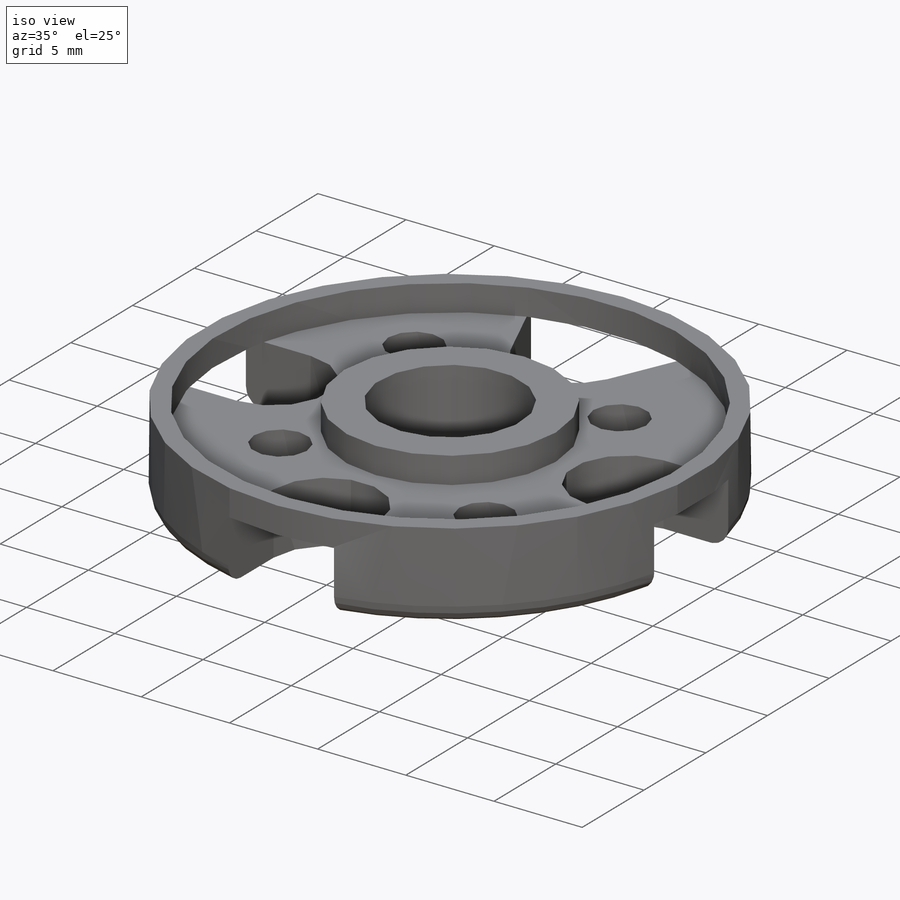
[diagram: iso view]
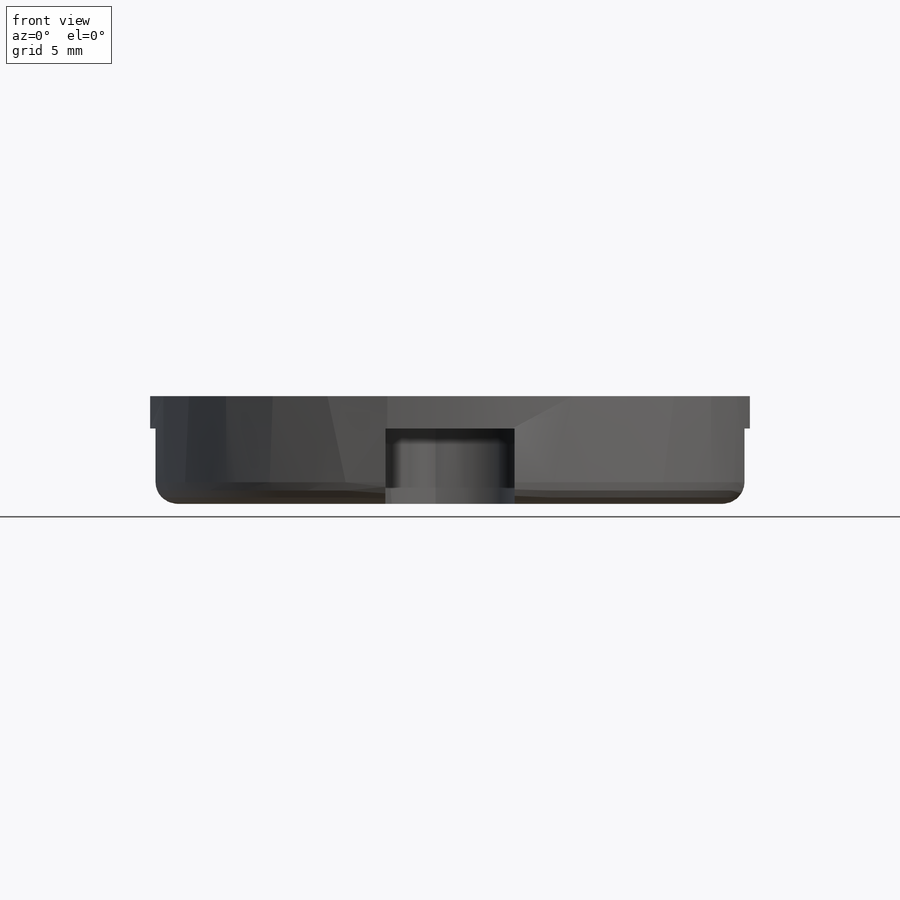
[diagram: front view]
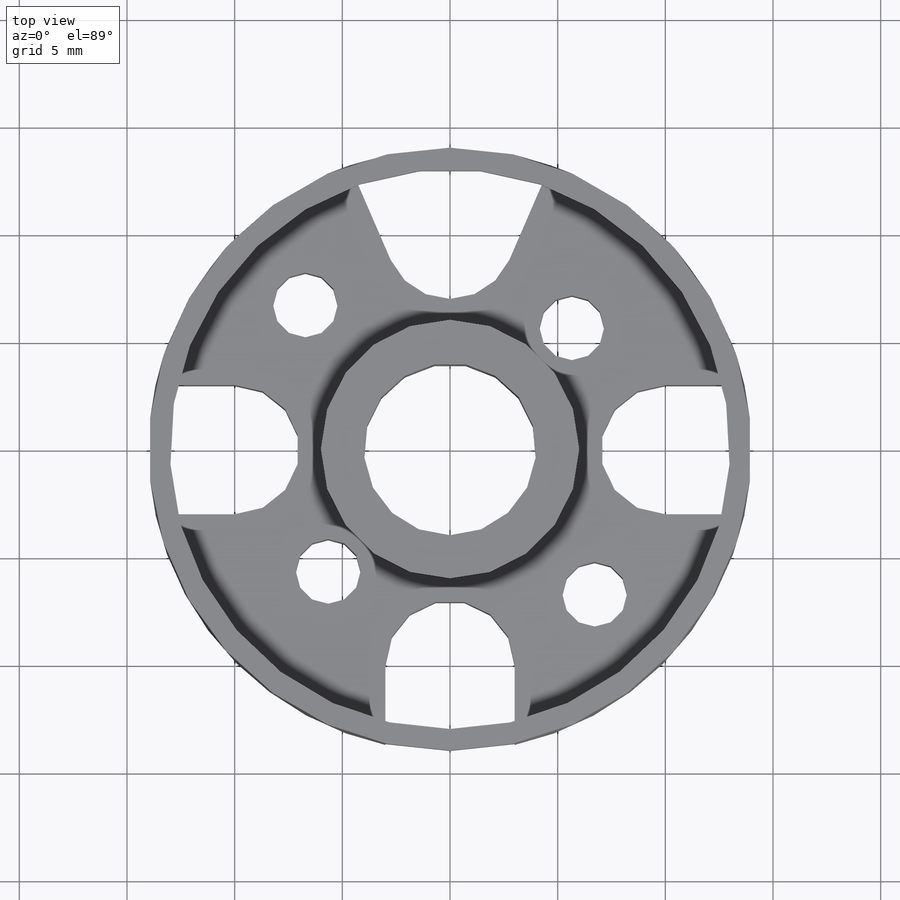
[diagram: top view]
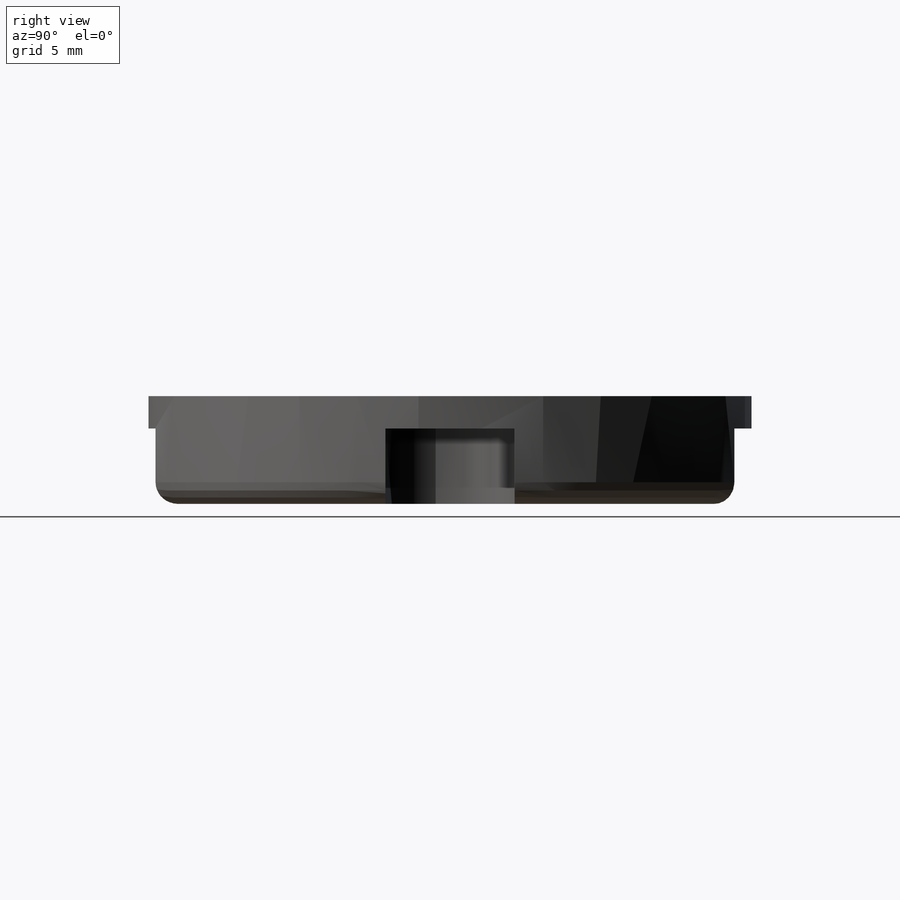
[diagram: right view]
SOLIDWORKS PART (.sldprt)
format: sldprt  version: not decoded by parser v0  size: 293,888 bytes
history: native  units: mm
features: sketch x7, cut_extrude x5, plane x3, extrude x2, material x1, fillet x1, pattern_circular x1 (+9 scaffold rows collapsed)
feature tree (29):
  scaffold x9  (default folders/planes/origin — collapsed)
  material  "Matériau <non spécifié>"
  plane  "XY"
  plane  "XZ"
  plane  "YZ"
  sketch  "Esquisse1"  dims[D1=28.0mm]
  extrude  "base brut"  Depth=5mm
  fillet  "Congé1"  Radius=1mm
  sketch  "Esquisse2"  dims[D1=1.0mm]
  cut_extrude  "creux interieur"  Depth=1.5mm
  sketch  "Esquisse3"  dims[D3=3.0mm D1=4.0mm D2=6.0mm]
  cut_extrude  "creusement exterieur"  [1 undecoded]
  pattern_circular  "Répétition circulaire1"  Count=3 Angle=90deg
  sketch  "Esquisse4"  dims[D2=3.0mm D1=10.0mm]
  cut_extrude  "passage fils"  [1 undecoded]
  sketch  "Esquisse5"  dims[D1=8.0mm]
  cut_extrude  "passage axe rotor"  [1 undecoded]
  sketch  "Esquisse6"  dims[D1=2.0mm]
  extrude  "bossage axe rotor"  [1 undecoded]
  sketch  "Esquisse7"  dims[c1.D5=3.0mm c1.D6=3.0mm c1.D7=~2.51083mm c1.D9=3.0mm c1.D1=~33.195978mm c2.D1=45.0deg c2.D2=~33.195978mm c3.D2=45.0deg c3.D3=16.0mm c3.D4=8.0mm c3.D7=19.0mm c3.D8=9.5mm]
  cut_extrude  "M3"  [1 undecoded]
decode coverage: 11 of 16 modeling features carry decoded parameters
note: ~ marks probable driven/reference dimensions
note: 5 parameter values undecoded
summary: no parameter record found for 5 features
note: suppression state not decoded; provenance and decode notes live in map.json
